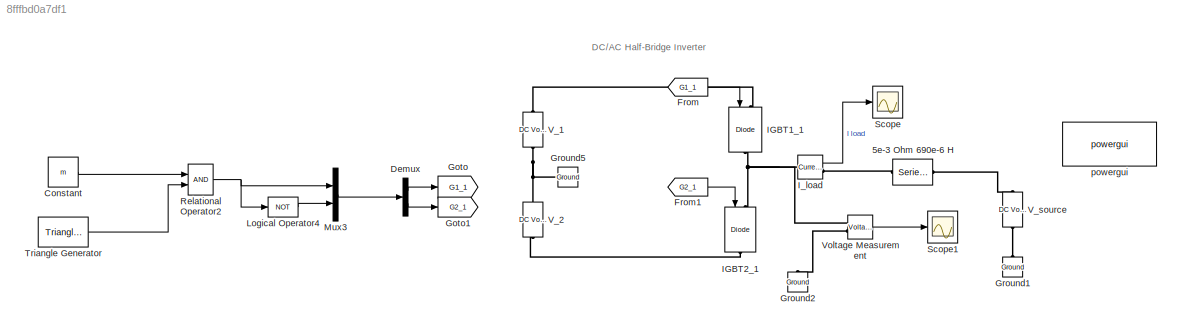
MODEL slx_8fffbd0a7df1
KIND model
BLOCK [Reference] 5e-3 Ohm 690e-6 H  REF=powerlib/Elements/Series RLC Branch
  AttributesFormatString = \n
  BranchType = RL
  Capacitance = []
  Inductance = 690e-6
  InitialCurrent = 1.6e3
  InitialVoltage = 0
  LConnTagsString = __new0
  Measurements = None
  Ports = [0, 0, 0, 0, 0, 1, 1]
  RConnTagsString = __new0
  Resistance = R
  SetiL0 = off
  Setx0 = off
  SourceBlock = powerlib/Elements/Series RLC Branch
  SourceType = Series RLC Branch
BLOCK [Constant] Constant
  Value = m
BLOCK [Demux] Demux
  DisplayOption = bar
  Outputs = 2
  Ports = [1, 2]
BLOCK [From] From
  CloseFcn = tagdialog Close
  GotoTag = G1_1
BLOCK [From] From1
  CloseFcn = tagdialog Close
  GotoTag = G2_1
BLOCK [Goto] Goto
  GotoTag = G1_1
BLOCK [Goto] Goto1
  GotoTag = G2_1
BLOCK [Reference] Ground1  REF=powerlib/Elements/Ground
  AttributesFormatString = \n
  LConnTagsString = a
  Ports = [0, 0, 0, 0, 0, 1]
  SourceBlock = powerlib/Elements/Ground
  SourceType = Ground
BLOCK [Reference] Ground2  REF=powerlib/Elements/Ground
  AttributesFormatString = \n
  LConnTagsString = a
  Ports = [0, 0, 0, 0, 0, 1]
  SourceBlock = powerlib/Elements/Ground
  SourceType = Ground
BLOCK [Reference] Ground5  REF=powerlib/Elements/Ground
  AttributesFormatString = \n
  LConnTagsString = a
  Ports = [0, 0, 0, 0, 0, 1]
  SourceBlock = powerlib/Elements/Ground
  SourceType = Ground
BLOCK [Reference] IGBT1_1  REF=powerlib/Power
Electronics/IGBT//Diode
  Cs = inf
  Measurements = off
  Ports = [1, 0, 0, 0, 0, 1, 1]
  Ron = 1e-6
  Rs = 1e5
  SourceBlock = powerlib/Power\nElectronics/IGBT//Diode
  SourceType = IGBT/Diode
BLOCK [Reference] IGBT2_1  REF=powerlib/Power
Electronics/IGBT//Diode
  Cs = inf
  Measurements = off
  Ports = [1, 0, 0, 0, 0, 1, 1]
  Ron = 1e-6
  Rs = 1e5
  SourceBlock = powerlib/Power\nElectronics/IGBT//Diode
  SourceType = IGBT/Diode
BLOCK [Reference] I_load  REF=powerlib/Measurements/Current Measurement
  AttributesFormatString = \n
  OutputType = Magnitude
  PSBequivalent = 0
  PhasorSimulation = off
  Ports = [0, 1, 0, 0, 0, 1, 1]
  SourceBlock = powerlib/Measurements/Current Measurement
  SourceType = Current Measurement
  Tag = PoWeRsYsTeMmEaSuReMeNt
BLOCK [Logic] Logical Operator4
  Operator = NOT
  Ports = [1, 1]
BLOCK [Mux] Mux3
  DisplayOption = bar
  Inputs = 2
  Ports = [2, 1]
BLOCK [RelationalOperator] Relational Operator2
  OutDataTypeStr = boolean
  Ports = [2, 1]
  ZeroCross = off
BLOCK [Scope] Scope
  Floating = off
  LimitDataPoints = off
  NumInputPorts = 1
  Ports = [1]
  SaveName = I_load
  SaveToWorkspace = on
  ShowLegends = off
  TimeRange = 0.1489795918367347
  YMax = 4174.170616113744
  YMin = 3534.36018957346
BLOCK [Scope] Scope1
  Floating = off
  LimitDataPoints = off
  NumInputPorts = 1
  Ports = [1]
  SaveName = ScopeData1
  ShowLegends = off
  YMax = 35000
  YMin = 0
BLOCK [Reference] Triangle Generator  REF=powerlib_meascontrol/Pulse & Signal
Generators/Triangle
Generator
  Freq = 54*60
  Phase = 0
  Ports = [0, 1]
  SourceBlock = powerlib_meascontrol/Pulse & Signal\nGenerators/Triangle\nGenerator
  SourceType = Triangle Generator
  Ts = 0
BLOCK [Reference] V_1  REF=powerlib/Electrical
Sources/DC Voltage Source
  Amplitude = V_DC/2
  AttributesFormatString = \n
  Description = source block
  Measurements = None
  Ports = [0, 0, 0, 0, 0, 1, 1]
  SourceBlock = powerlib/Electrical\nSources/DC Voltage Source
  SourceType = DC Voltage Source
BLOCK [Reference] V_2  REF=powerlib/Electrical
Sources/DC Voltage Source
  Amplitude = V_DC/2
  AttributesFormatString = \n
  Description = source block
  Measurements = None
  Ports = [0, 0, 0, 0, 0, 1, 1]
  SourceBlock = powerlib/Electrical\nSources/DC Voltage Source
  SourceType = DC Voltage Source
BLOCK [Reference] V_source  REF=powerlib/Electrical
Sources/DC Voltage Source
  Amplitude = V_s
  Measurements = None
  Ports = [0, 0, 0, 0, 0, 1, 1]
  SourceBlock = powerlib/Electrical\nSources/DC Voltage Source
  SourceType = DC Voltage Source
BLOCK [Reference] Voltage Measurement  REF=powerlib/Measurements/Voltage Measurement
  OutputType = Complex
  PSBequivalent = 0
  PhasorSimulation = off
  Ports = [0, 1, 0, 0, 0, 2]
  SourceBlock = powerlib/Measurements/Voltage Measurement
  SourceType = Voltage Measurement
  UserDataPersistent = on
BLOCK [Reference] powergui  REF=powerlib/powergui
  DisableRonSwitches = off
  DisableSnubberDevices = off
  DisableVfSwitches = off
  DisplayEquations = off
  DisplayStyle = 1
  EnableUseOfTLC = off
  ErrMax = 1e-4
  Frange = [0:2:500]
  FreqAxis = off
  FunctionMessages = off
  HookPort = off
  Interpol = off
  Iterations = 50
  MaxFrequency = 5000
  Pbase = 100e6
  Ports = []
  ResistiveCurrentMeasurement = off
  RestoreLinks = warning
  RmsSteady = 1
  SPID = off
  SampleTime = Ts
  ShowGrid = off
  SolverType = Tustin/Backward Euler (TBE)
  SourceBlock = powerlib/powergui
  SourceType = PSB option menu block
  StartTime = 0.1-2/60
  SwTol = 0
  Ts = 0
  UnitsV = kV
  UnitsW = MW
  UserDataPersistent = on
  Xlog = on
  Ylog = off
  ZoomFFT = on
  cycles = 2
  display = off
  echomessages = off
  frequency = 60
  frequencyindice = 0
  frequencyindicesteady = 1
  fundamental = 60
  methode = off
  save = off
  structure = sps1phPWM1_str
  variable = ZData
  x0status = blocks
ANNOTATION (root): DC/AC Half-Bridge Inverter
LINE Constant:1 -> Relational Operator2:1
LINE Demux:1 -> Goto:1
LINE Demux:2 -> Goto1:1
LINE From1:1 -> IGBT2_1:1
LINE From:1 -> IGBT1_1:1
LINE I_load:1 -> Scope:1
LINE Logical Operator4:1 -> Mux3:2
LINE Mux3:1 -> Demux:1
NET Relational Operator2:1 -> Logical Operator4:1, Mux3:1
LINE Triangle Generator:1 -> Relational Operator2:2
LINE Voltage Measurement:1 -> Scope1:1
PLINE 5e-3 Ohm 690e-6 H:LConn1 -- V_source:RConn1
PLINE 5e-3 Ohm 690e-6 H:RConn1 -- I_load:RConn1
PLINE Ground1:LConn1 -- V_source:LConn1
PLINE Ground2:LConn1 -- Voltage Measurement:LConn2
PNET net1: Ground5:LConn1 -- V_1:LConn1 -- V_2:RConn1
PLINE IGBT1_1:LConn1 -- V_1:RConn1
PNET net2: IGBT1_1:RConn1 -- IGBT2_1:LConn1 -- I_load:LConn1 -- Voltage Measurement:LConn1
PLINE IGBT2_1:RConn1 -- V_2:LConn1
note: NET lines group one-source signal fan-out (src -> all destinations, sorted); 1:1 wires keep LINE; PNET lines group multi-terminal physical nets as a canonical sorted terminal list (undirected conserving connections); 2-terminal nets keep the pairwise PLINE form
